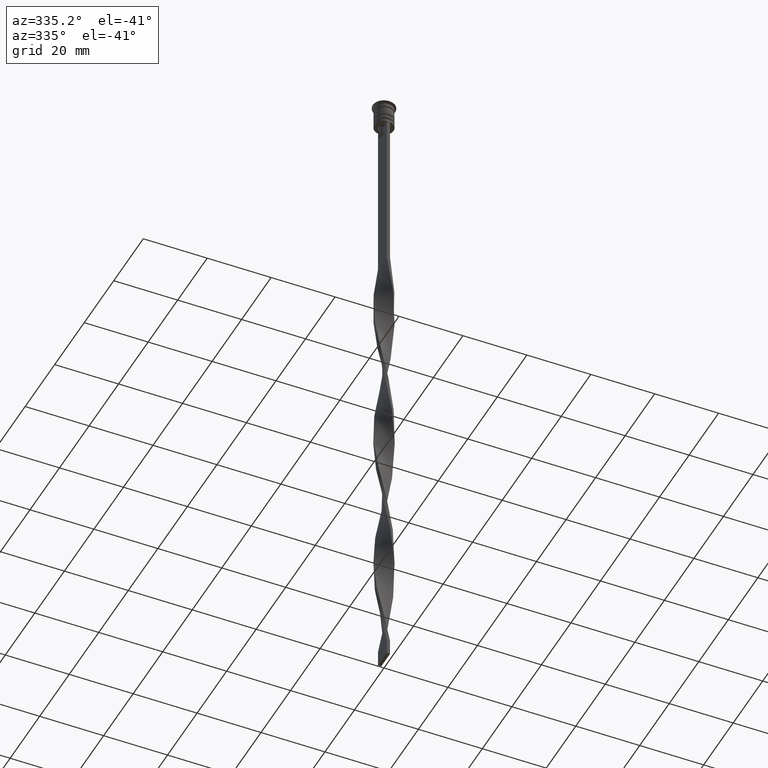
[diagram: clean part render]
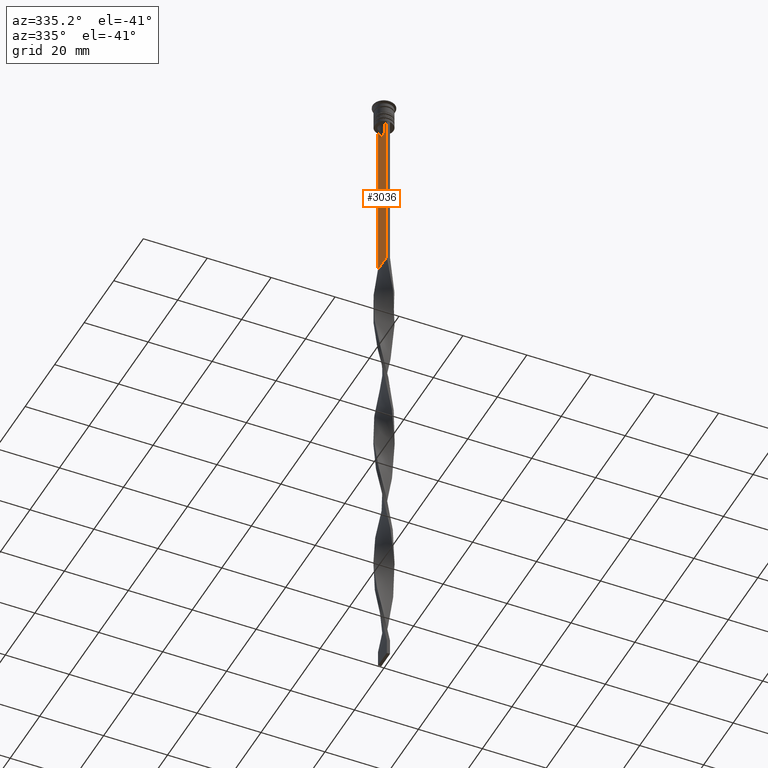
[diagram: same view with one face highlighted and labeled with its STEP entity id]
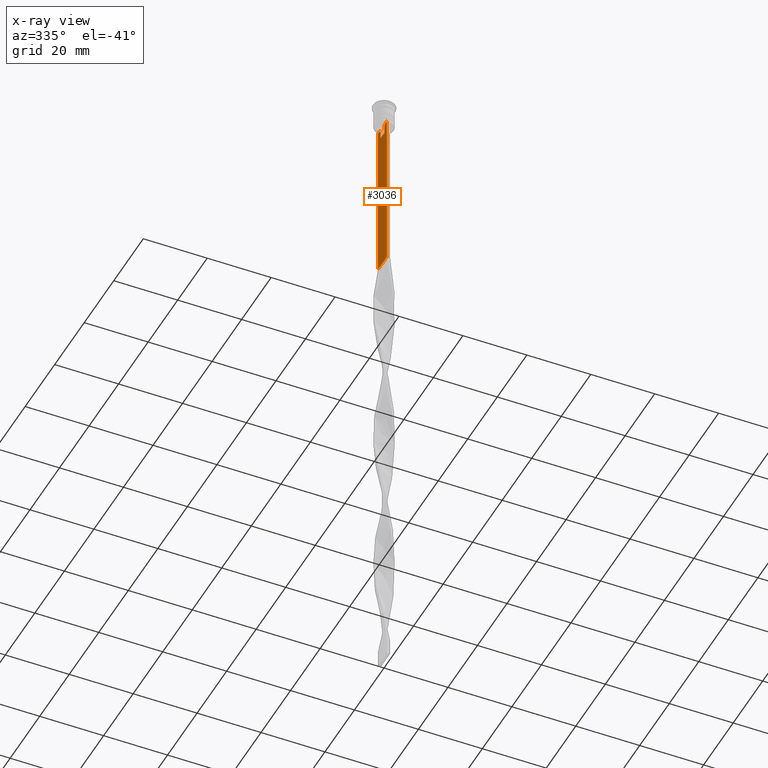
[diagram: x-ray of the same camera — body ghosted, the highlighted face saturated]
A machine part, auxiliary view. The second image highlights one B-rep face of the part: STEP entity #3036.
The next image is the same camera in x-ray: the body ghosted, the highlighted face saturated — about 0% of this face is hidden behind the body in this view.
In plain terms, the highlighted planar face has unit normal (-1, 0, 0).
Its self-contained STEP definition (entity closure, byte-faithful):
#140 = FACE_OUTER_BOUND ( 'NONE', #3640, .T. ) ;
#169 = LINE ( 'NONE', #1335, #356 ) ;
#201 = CARTESIAN_POINT ( 'NONE',  ( -0.5000000000000001110, -3.000000000000000000, -7.500000000000000000 ) ) ;
#215 = VERTEX_POINT ( 'NONE', #1236 ) ;
#232 = DIRECTION ( 'NONE',  ( 0.000000000000000000, -1.000000000000000000, 0.000000000000000000 ) ) ;
#252 = ORIENTED_EDGE ( 'NONE', *, *, #2263, .T. ) ;
#273 = ORIENTED_EDGE ( 'NONE', *, *, #1103, .F. ) ;
#303 = VERTEX_POINT ( 'NONE', #1314 ) ;
#356 = VECTOR ( 'NONE', #1473, 1000.000000000000000 ) ;
#364 = DIRECTION ( 'NONE',  ( 0.000000000000000000, 0.000000000000000000, -1.000000000000000000 ) ) ;
#383 = EDGE_CURVE ( 'NONE', #1398, #2973, #2179, .T. ) ;
#410 = ORIENTED_EDGE ( 'NONE', *, *, #1566, .F. ) ;
#448 = CARTESIAN_POINT ( 'NONE',  ( -0.5000000000000001110, -1.484307477388859153, -7.835011508197190722 ) ) ;
#458 = DIRECTION ( 'NONE',  ( 0.000000000000000000, -1.000000000000000000, 0.000000000000000000 ) ) ;
#475 = CARTESIAN_POINT ( 'NONE',  ( -0.5000000000000001110, 1.399999999999997691, -10.49999999999999822 ) ) ;
#526 = ORIENTED_EDGE ( 'NONE', *, *, #1761, .F. ) ;
#555 = CARTESIAN_POINT ( 'NONE',  ( -0.5000000000000001110, 1.307669683062199217, -10.49999999999999822 ) ) ;
#606 = ORIENTED_EDGE ( 'NONE', *, *, #3127, .F. ) ;
#667 = LINE ( 'NONE', #1494, #1768 ) ;
#700 = EDGE_CURVE ( 'NONE', #3250, #896, #3504, .T. ) ;
#766 = DIRECTION ( 'NONE',  ( 0.000000000000000000, 0.000000000000000000, 1.000000000000000000 ) ) ;
#776 = ORIENTED_EDGE ( 'NONE', *, *, #383, .F. ) ;
#824 = ORIENTED_EDGE ( 'NONE', *, *, #1344, .F. ) ;
#828 = CARTESIAN_POINT ( 'NONE',  ( -0.5000000000000001110, -3.000000000000000000, -7.500000000000000000 ) ) ;
#851 = VECTOR ( 'NONE', #2684, 1000.000000000000000 ) ;
#896 = VERTEX_POINT ( 'NONE', #2369 ) ;
#1006 = CARTESIAN_POINT ( 'NONE',  ( -0.5000000000000001110, -3.000000000000000000, -58.50000000000000000 ) ) ;
#1035 = CARTESIAN_POINT ( 'NONE',  ( -0.5000000000000001110, -3.000000000000000000, -1.417237469701779329 ) ) ;
#1056 = EDGE_CURVE ( 'NONE', #1118, #3182, #1901, .T. ) ;
#1086 = CARTESIAN_POINT ( 'NONE',  ( -0.5000000000000001110, -1.307669683062199217, 0.000000000000000000 ) ) ;
#1103 = EDGE_CURVE ( 'NONE', #1272, #3250, #169, .T. ) ;
#1118 = VERTEX_POINT ( 'NONE', #555 ) ;
#1141 = VECTOR ( 'NONE', #364, 1000.000000000000000 ) ;
#1200 = VECTOR ( 'NONE', #232, 1000.000000000000000 ) ;
#1234 = ORIENTED_EDGE ( 'NONE', *, *, #1056, .F. ) ;
#1236 = CARTESIAN_POINT ( 'NONE',  ( -0.5000000000000001110, -1.307669683062199217, -8.000000000000000000 ) ) ;
#1242 = LINE ( 'NONE', #2142, #851 ) ;
#1272 = VERTEX_POINT ( 'NONE', #2646 ) ;
#1305 = PLANE ( 'NONE',  #3616 ) ;
#1314 = CARTESIAN_POINT ( 'NONE',  ( -0.5000000000000001110, -1.833030277982335532, -7.500000000000000000 ) ) ;
#1335 = CARTESIAN_POINT ( 'NONE',  ( -0.5000000000000001110, -3.000000000000000000, -7.500000000000000000 ) ) ;
#1344 = EDGE_CURVE ( 'NONE', #2973, #3128, #3152, .T. ) ;
#1398 = VERTEX_POINT ( 'NONE', #2772 ) ;
#1473 = DIRECTION ( 'NONE',  ( 0.000000000000000000, -1.000000000000000000, 0.000000000000000000 ) ) ;
#1494 = CARTESIAN_POINT ( 'NONE',  ( -0.5000000000000001110, 3.000000000000000000, -1.417237469701779329 ) ) ;
#1566 = EDGE_CURVE ( 'NONE', #3182, #215, #2248, .T. ) ;
#1607 = CARTESIAN_POINT ( 'NONE',  ( -0.5000000000000001110, -1.307669683062199217, -8.000000000000000000 ) ) ;
#1610 = CARTESIAN_POINT ( 'NONE',  ( -0.5000000000000001110, 1.307669683062199217, -8.000000000000000000 ) ) ;
#1624 = LINE ( 'NONE', #1006, #3205 ) ;
#1640 = VECTOR ( 'NONE', #2873, 1000.000000000000000 ) ;
#1675 = CARTESIAN_POINT ( 'NONE',  ( -0.5000000000000001110, 2.856571371417139904, -7.500000000000000000 ) ) ;
#1687 = CARTESIAN_POINT ( 'NONE',  ( -0.5000000000000001110, -1.307669683062199217, -10.49999999999999822 ) ) ;
#1704 = EDGE_CURVE ( 'NONE', #303, #1272, #2487, .T. ) ;
#1705 = CARTESIAN_POINT ( 'NONE',  ( -0.5000000000000001110, -3.000000000000000000, -7.500000000000000000 ) ) ;
#1761 = EDGE_CURVE ( 'NONE', #215, #303, #3557, .T. ) ;
#1768 = VECTOR ( 'NONE', #3490, 1000.000000000000000 ) ;
#1860 = ORIENTED_EDGE ( 'NONE', *, *, #700, .F. ) ;
#1865 = EDGE_CURVE ( 'NONE', #896, #2751, #1624, .T. ) ;
#1876 = VECTOR ( 'NONE', #1961, 1000.000000000000000 ) ;
#1877 = CARTESIAN_POINT ( 'NONE',  ( -0.5000000000000001110, 3.000000000000000000, -58.50000000000000000 ) ) ;
#1891 = DIRECTION ( 'NONE',  ( 0.000000000000000000, 1.000000000000000000, 0.000000000000000000 ) ) ;
#1901 = LINE ( 'NONE', #475, #1200 ) ;
#1961 = DIRECTION ( 'NONE',  ( -0.000000000000000000, -0.000000000000000000, 1.000000000000000000 ) ) ;
#2142 = CARTESIAN_POINT ( 'NONE',  ( -0.5000000000000001110, 1.307669683062199217, 0.000000000000000000 ) ) ;
#2179 = LINE ( 'NONE', #1705, #2880 ) ;
#2248 = LINE ( 'NONE', #1086, #1876 ) ;
#2263 = EDGE_CURVE ( 'NONE', #1398, #2751, #667, .T. ) ;
#2369 = CARTESIAN_POINT ( 'NONE',  ( -0.5000000000000001110, -3.000000000000000000, -58.50000000000000000 ) ) ;
#2384 = CARTESIAN_POINT ( 'NONE',  ( -0.5000000000000001110, -3.000000000000000000, -1.417237469701779329 ) ) ;
#2436 = ORIENTED_EDGE ( 'NONE', *, *, #1865, .F. ) ;
#2445 = DIRECTION ( 'NONE',  ( -1.000000000000000000, 0.000000000000000000, 0.000000000000000000 ) ) ;
#2473 = VECTOR ( 'NONE', #3341, 1000.000000000000000 ) ;
#2487 = LINE ( 'NONE', #201, #2473 ) ;
#2514 = ORIENTED_EDGE ( 'NONE', *, *, #1704, .F. ) ;
#2646 = CARTESIAN_POINT ( 'NONE',  ( -0.5000000000000001110, -2.856571371417139904, -7.500000000000000000 ) ) ;
#2684 = DIRECTION ( 'NONE',  ( 0.000000000000000000, 0.000000000000000000, -1.000000000000000000 ) ) ;
#2747 = CARTESIAN_POINT ( 'NONE',  ( -0.5000000000000001110, -1.659011726860414093, -7.667884880598472286 ) ) ;
#2751 = VERTEX_POINT ( 'NONE', #1877 ) ;
#2772 = CARTESIAN_POINT ( 'NONE',  ( -0.5000000000000001110, 3.000000000000000000, -7.500000000000000000 ) ) ;
#2858 = B_SPLINE_CURVE_WITH_KNOTS ( 'NONE', 3,
 ( #3664, #3685, #3436, #2876 ),
 .UNSPECIFIED., .F., .F.,
 ( 4, 4 ),
 ( 0.003278537493109840491, 0.004003794023484932504 ),
 .UNSPECIFIED. ) ;
#2873 = DIRECTION ( 'NONE',  ( 0.000000000000000000, -1.000000000000000000, 0.000000000000000000 ) ) ;
#2876 = CARTESIAN_POINT ( 'NONE',  ( -0.5000000000000001110, 1.307669683062199217, -8.000000000000000000 ) ) ;
#2880 = VECTOR ( 'NONE', #458, 1000.000000000000000 ) ;
#2973 = VERTEX_POINT ( 'NONE', #1675 ) ;
#3017 = VERTEX_POINT ( 'NONE', #1610 ) ;
#3032 = CARTESIAN_POINT ( 'NONE',  ( -0.5000000000000001110, -1.833030277982335532, -7.500000000000000000 ) ) ;
#3036 = ADVANCED_FACE ( 'NONE', ( #140 ), #1305, .T. ) ;
#3099 = CARTESIAN_POINT ( 'NONE',  ( -0.5000000000000001110, 1.833030277982335532, -7.500000000000000000 ) ) ;
#3127 = EDGE_CURVE ( 'NONE', #3128, #3017, #2858, .T. ) ;
#3128 = VERTEX_POINT ( 'NONE', #3099 ) ;
#3152 = LINE ( 'NONE', #828, #1640 ) ;
#3182 = VERTEX_POINT ( 'NONE', #1687 ) ;
#3205 = VECTOR ( 'NONE', #1891, 1000.000000000000000 ) ;
#3250 = VERTEX_POINT ( 'NONE', #3468 ) ;
#3341 = DIRECTION ( 'NONE',  ( 0.000000000000000000, -1.000000000000000000, 0.000000000000000000 ) ) ;
#3353 = EDGE_CURVE ( 'NONE', #3017, #1118, #1242, .T. ) ;
#3408 = ORIENTED_EDGE ( 'NONE', *, *, #3353, .F. ) ;
#3436 = CARTESIAN_POINT ( 'NONE',  ( -0.5000000000000001110, 1.484355510416485391, -7.834966642958598015 ) ) ;
#3468 = CARTESIAN_POINT ( 'NONE',  ( -0.5000000000000001110, -3.000000000000000000, -7.500000000000000000 ) ) ;
#3490 = DIRECTION ( 'NONE',  ( 0.000000000000000000, 0.000000000000000000, -1.000000000000000000 ) ) ;
#3504 = LINE ( 'NONE', #2384, #1141 ) ;
#3557 = B_SPLINE_CURVE_WITH_KNOTS ( 'NONE', 3,
 ( #1607, #448, #2747, #3032 ),
 .UNSPECIFIED., .F., .F.,
 ( 4, 4 ),
 ( 0.007225659348748070081, 0.007950554640278040958 ),
 .UNSPECIFIED. ) ;
#3616 = AXIS2_PLACEMENT_3D ( 'NONE', #1035, #2445, #766 ) ;
#3640 = EDGE_LOOP ( 'NONE', ( #606, #824, #776, #252, #2436, #1860, #273, #2514, #526, #410, #1234, #3408 ) ) ;
#3664 = CARTESIAN_POINT ( 'NONE',  ( -0.5000000000000001110, 1.833030277982335532, -7.500000000000000000 ) ) ;
#3685 = CARTESIAN_POINT ( 'NONE',  ( -0.5000000000000001110, 1.659046061654642523, -7.667851756010361619 ) ) ;